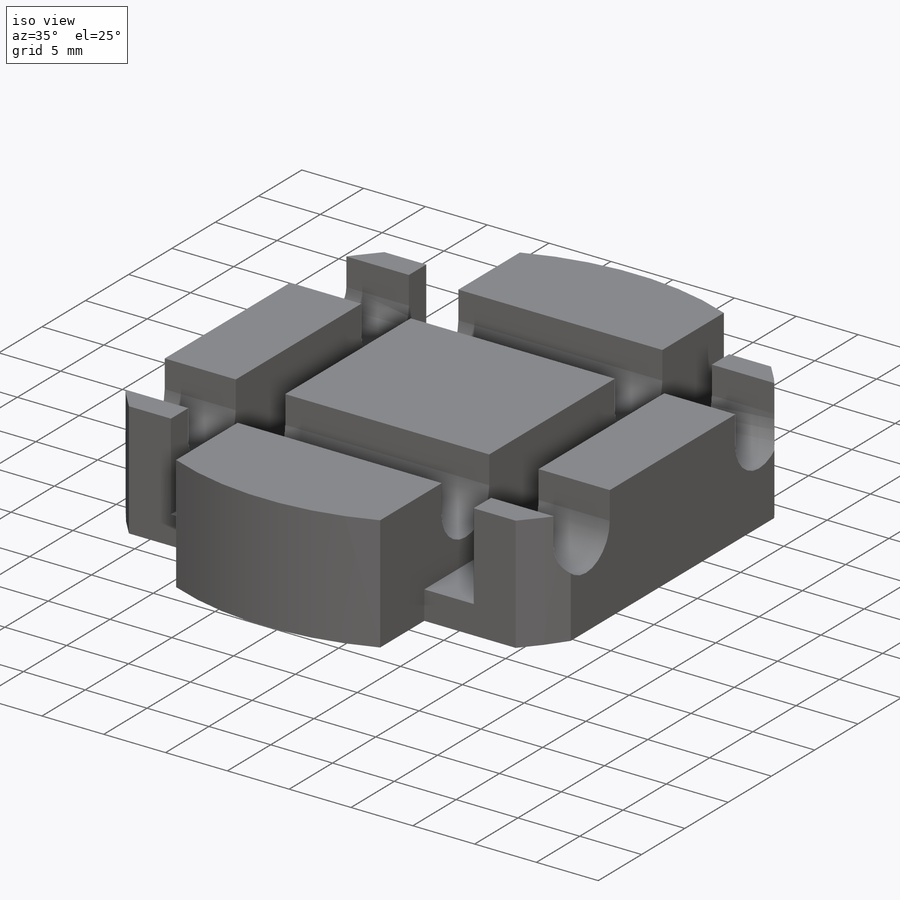
[diagram: iso view]
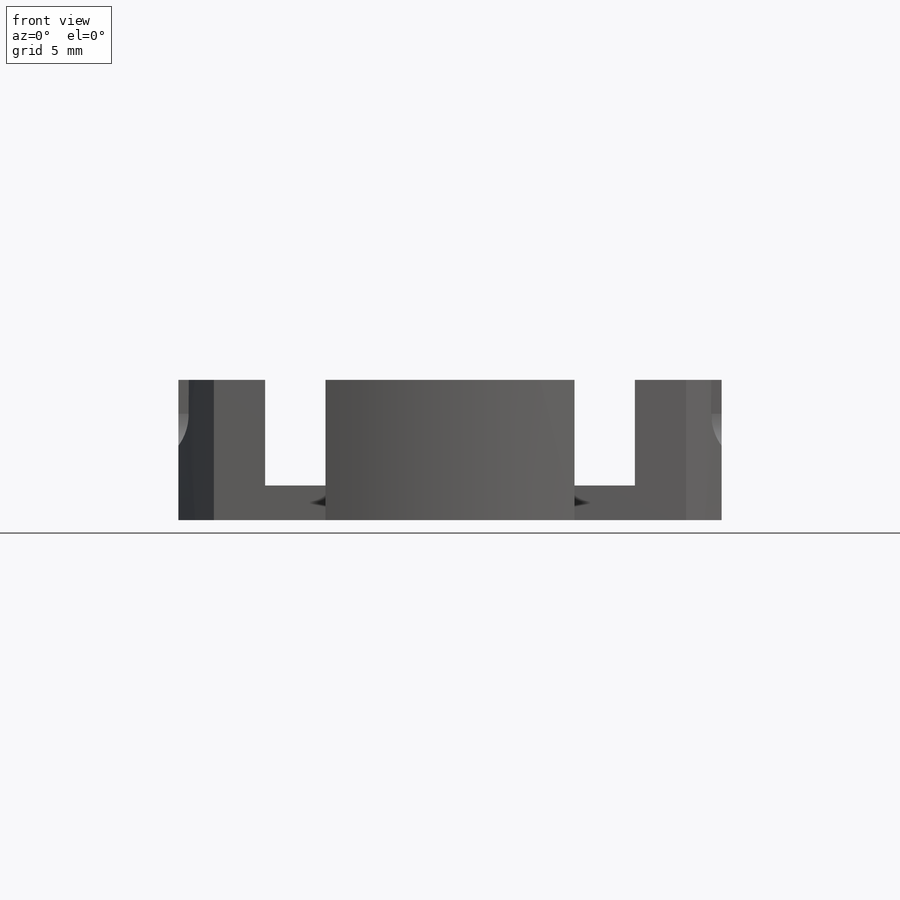
[diagram: front view]
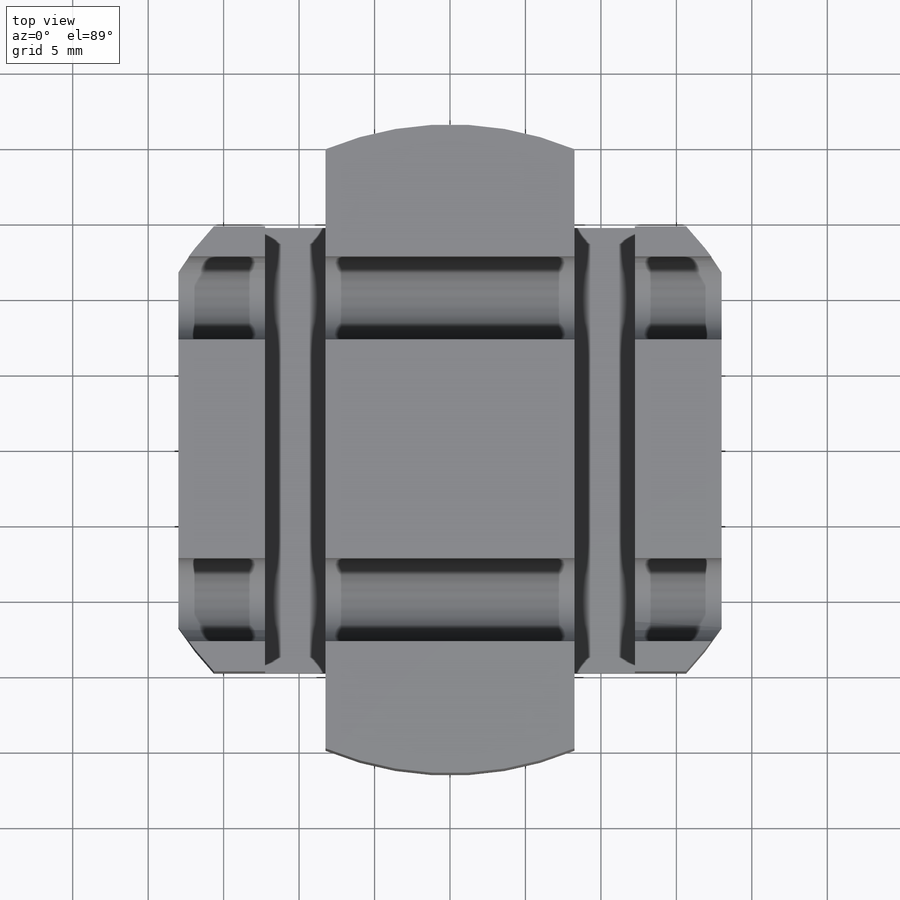
[diagram: top view]
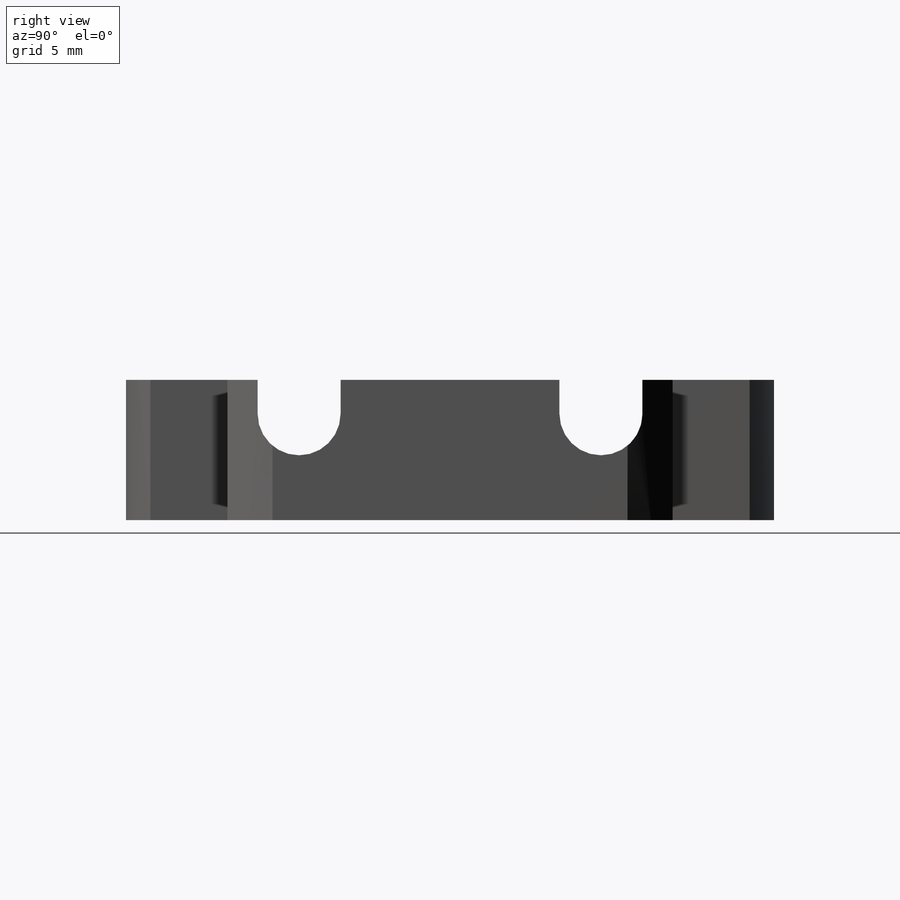
[diagram: right view]
SOLIDWORKS PART (.sldprt)
format: sldprt  version: not decoded by parser v0  size: 231,424 bytes
history: native  units: mm
features: sketch x4, plane x3, cut_extrude x3, material x1, extrude x1 (+10 scaffold rows collapsed)
feature tree (22):
  scaffold x10  (default folders/planes/origin — collapsed)
  material  "Malzeme <belirli değil>"
  plane  "Ön Düzlem"
  plane  "Üst Düzlem"
  plane  "Sağ Düzlem"
  sketch  "Çizim1"  dims[D1=43.0mm D2=18.0mm D3=18.0mm]
  extrude  "Yükseklik-Ekstrüzyon1"  Depth=9.3mm
  sketch  "Çizim2"  dims[D1=8.25mm D2=8.25mm D3=14.75mm D4=14.75mm]
  cut_extrude  "Kes-Ekstrüzyon1"  [1 undecoded]
  sketch  "Çizim3"  dims[c1.D1=5.5mm c1.D2=5.5mm c1.D3=5.5mm c1.D4=5.5mm c2.D2=20.0mm c2.D3=10.0mm c2.D4=5.0mm c2.D5=1.0mm]
  cut_extrude  "Kes-Ekstrüzyon2"  [1 undecoded]
  sketch  "Çizim4"  dims[D1=7.0mm D2=4.0mm D3=0.2mm D4=0.2mm]
  cut_extrude  "Kes-Ekstrüzyon3"  Depth=50mm
decode coverage: 6 of 8 modeling features carry decoded parameters
note: 2 parameter values undecoded
note: suppression state not decoded; provenance and decode notes live in map.json
